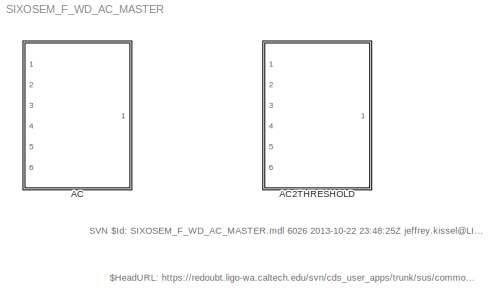
MODEL SIXOSEM_F_WD_AC_MASTER
KIND library
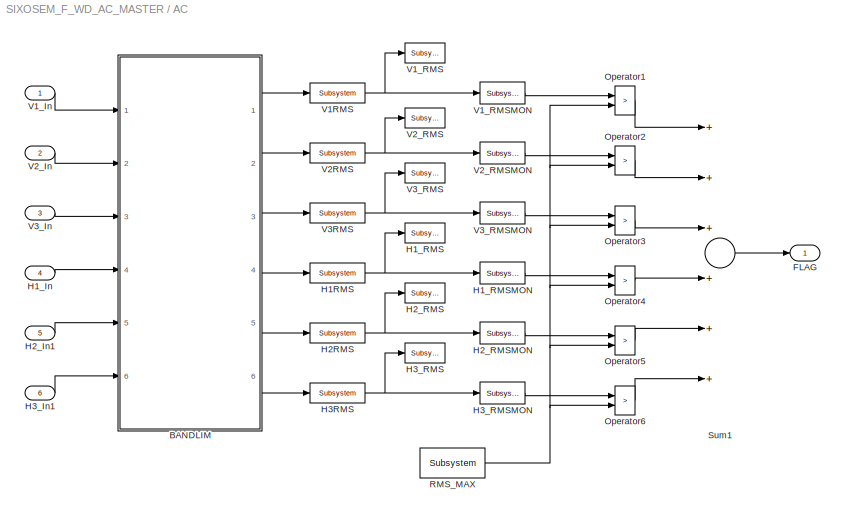
BLOCK [SubSystem] AC
  Ports = [6, 1]
  RequestExecContextInheritance = off
  SID = 1
  Variant = off
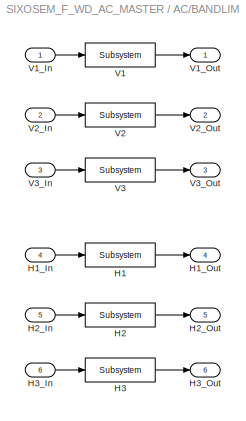
BLOCK [SubSystem] AC/BANDLIM
  Ports = [6, 6]
  RequestExecContextInheritance = off
  SID = 8
  Variant = off
BLOCK [Reference] AC/BANDLIM/H1  REF=cdsFilt/Subsystem
  AttributesFormatString = %<Tag>
  Description = Purpose:                                                                                                                                                                                                                                  \nStandard CDS IIR filter module.                                                                                                                                     ...<+1302ch>  <repeated x12 — deduplicated; at blocks: H1, H2, H3, V1, V2, V3, ACC_H1, ACC_H2, ACC_H3, LVDT_H1, LVDT_H2, LVDT_H3>
  Ports = [1, 1]
  SID = 18
  SourceBlock = cdsFilt/Subsystem
  SourceType = SubSystem
  Tag = cdsFilt
BLOCK [Inport] AC/BANDLIM/H1_In
  IconDisplay = Port number
  Port = 4
  SID = 12
BLOCK [Outport] AC/BANDLIM/H1_Out
  IconDisplay = Port number
  Port = 4
  SID = 24
BLOCK [Reference] AC/BANDLIM/H2  REF=cdsFilt/Subsystem
  AttributesFormatString = %<Tag>
  Ports = [1, 1]
  SID = 19
  SourceBlock = cdsFilt/Subsystem
  SourceType = SubSystem
  Tag = cdsFilt
BLOCK [Inport] AC/BANDLIM/H2_In
  IconDisplay = Port number
  Port = 5
  SID = 13
BLOCK [Outport] AC/BANDLIM/H2_Out
  IconDisplay = Port number
  Port = 5
  SID = 25
BLOCK [Reference] AC/BANDLIM/H3  REF=cdsFilt/Subsystem
  AttributesFormatString = %<Tag>
  Ports = [1, 1]
  SID = 20
  SourceBlock = cdsFilt/Subsystem
  SourceType = SubSystem
  Tag = cdsFilt
BLOCK [Inport] AC/BANDLIM/H3_In
  IconDisplay = Port number
  Port = 6
  SID = 14
BLOCK [Outport] AC/BANDLIM/H3_Out
  IconDisplay = Port number
  Port = 6
  SID = 26
BLOCK [Reference] AC/BANDLIM/V1  REF=cdsFilt/Subsystem
  AttributesFormatString = %<Tag>
  Ports = [1, 1]
  SID = 15
  SourceBlock = cdsFilt/Subsystem
  SourceType = SubSystem
  Tag = cdsFilt
BLOCK [Inport] AC/BANDLIM/V1_In
  IconDisplay = Port number
  SID = 9
BLOCK [Outport] AC/BANDLIM/V1_Out
  IconDisplay = Port number
  SID = 21
BLOCK [Reference] AC/BANDLIM/V2  REF=cdsFilt/Subsystem
  AttributesFormatString = %<Tag>
  Ports = [1, 1]
  SID = 16
  SourceBlock = cdsFilt/Subsystem
  SourceType = SubSystem
  Tag = cdsFilt
BLOCK [Inport] AC/BANDLIM/V2_In
  IconDisplay = Port number
  Port = 2
  SID = 10
BLOCK [Outport] AC/BANDLIM/V2_Out
  IconDisplay = Port number
  Port = 2
  SID = 22
BLOCK [Reference] AC/BANDLIM/V3  REF=cdsFilt/Subsystem
  AttributesFormatString = %<Tag>
  Ports = [1, 1]
  SID = 17
  SourceBlock = cdsFilt/Subsystem
  SourceType = SubSystem
  Tag = cdsFilt
BLOCK [Inport] AC/BANDLIM/V3_In
  IconDisplay = Port number
  Port = 3
  SID = 11
BLOCK [Outport] AC/BANDLIM/V3_Out
  IconDisplay = Port number
  Port = 3
  SID = 23
BLOCK [Outport] AC/FLAG
  IconDisplay = Port number
  SID = 53
BLOCK [Reference] AC/H1RMS  REF=cdsRms/Subsystem
  AttributesFormatString = %<Tag>
  Description = Purpose:                                   \nCalculate an RMS based on the input signal.
  Ports = [1, 1]
  SID = 36
  SourceBlock = cdsRms/Subsystem
  SourceType = SubSystem
  Tag = cdsRms
BLOCK [Inport] AC/H1_In
  IconDisplay = Port number
  Port = 4
  SID = 5
BLOCK [Reference] AC/H1_RMS  REF=cdsTP/Subsystem
  AttributesFormatString = %<Tag>
  Ports = [1]
  SID = 37
  SourceBlock = cdsTP/Subsystem
  SourceType = SubSystem
  Tag = Test Point
BLOCK [Reference] AC/H1_RMSMON  REF=cdsEpicsOut/Subsystem
  AttributesFormatString = %<Tag>
  Description = Purpose:                                          \nOutput a FE signal to an EPICS channel.           \n                                                  \nOperation:                                        \nTakes input value and passes it to EPICS record.  \n                                                  \nUsage:                                            \nName the part with the desired EPICS...<+14ch>  <repeated x12 — deduplicated; at blocks: H1_RMSMON, H2_RMSMON, H3_RMSMON, V1_RMSMON, V2_RMSMON, V3_RMSMON, ACC_H1_RMSMON, ACC_H2_RMSMON, ACC_H3_RMSMON, LVDT_H1_RMSMON, LVDT_H2_RMSMON, LVDT_H3_RMSMON>
  Ports = [1, 1]
  SID = 38
  SourceBlock = cdsEpicsOut/Subsystem
  SourceType = SubSystem
  Tag = cdsEpicsOutput
BLOCK [Reference] AC/H2RMS  REF=cdsRms/Subsystem
  AttributesFormatString = %<Tag>
  Description = Purpose:                                   \nCalculate an RMS based on the input signal.
  Ports = [1, 1]
  SID = 46
  SourceBlock = cdsRms/Subsystem
  SourceType = SubSystem
  Tag = cdsRms
BLOCK [Inport] AC/H2_In1
  IconDisplay = Port number
  Port = 5
  SID = 6
BLOCK [Reference] AC/H2_RMS  REF=cdsTP/Subsystem
  AttributesFormatString = %<Tag>
  Ports = [1]
  SID = 47
  SourceBlock = cdsTP/Subsystem
  SourceType = SubSystem
  Tag = Test Point
BLOCK [Reference] AC/H2_RMSMON  REF=cdsEpicsOut/Subsystem
  AttributesFormatString = %<Tag>
  Ports = [1, 1]
  SID = 48
  SourceBlock = cdsEpicsOut/Subsystem
  SourceType = SubSystem
  Tag = cdsEpicsOutput
BLOCK [Reference] AC/H3RMS  REF=cdsRms/Subsystem
  AttributesFormatString = %<Tag>
  Description = Purpose:                                   \nCalculate an RMS based on the input signal.
  Ports = [1, 1]
  SID = 49
  SourceBlock = cdsRms/Subsystem
  SourceType = SubSystem
  Tag = cdsRms
BLOCK [Inport] AC/H3_In1
  IconDisplay = Port number
  Port = 6
  SID = 7
BLOCK [Reference] AC/H3_RMS  REF=cdsTP/Subsystem
  AttributesFormatString = %<Tag>
  Ports = [1]
  SID = 50
  SourceBlock = cdsTP/Subsystem
  SourceType = SubSystem
  Tag = Test Point
BLOCK [Reference] AC/H3_RMSMON  REF=cdsEpicsOut/Subsystem
  AttributesFormatString = %<Tag>
  Ports = [1, 1]
  SID = 51
  SourceBlock = cdsEpicsOut/Subsystem
  SourceType = SubSystem
  Tag = cdsEpicsOutput
BLOCK [RelationalOperator] AC/Operator1
  InputSameDT = off
  Operator = >
  OutDataTypeStr = boolean
  Ports = [2, 1]
  SID = 39
BLOCK [RelationalOperator] AC/Operator2
  InputSameDT = off
  Operator = >
  OutDataTypeStr = boolean
  Ports = [2, 1]
  SID = 40
  ZeroCross = off
BLOCK [RelationalOperator] AC/Operator3
  InputSameDT = off
  Operator = >
  OutDataTypeStr = boolean
  Ports = [2, 1]
  SID = 41
BLOCK [RelationalOperator] AC/Operator4
  InputSameDT = off
  Operator = >
  OutDataTypeStr = boolean
  Ports = [2, 1]
  SID = 42
BLOCK [RelationalOperator] AC/Operator5
  InputSameDT = off
  Operator = >
  OutDataTypeStr = boolean
  Ports = [2, 1]
  SID = 43
BLOCK [RelationalOperator] AC/Operator6
  InputSameDT = off
  Operator = >
  OutDataTypeStr = boolean
  Ports = [2, 1]
  SID = 44
BLOCK [Reference] AC/RMS_MAX  REF=cdsEpicsIn/Subsystem
  AttributesFormatString = %<Tag>
  Description = Purpose:                                                                              \nCreate an EPICS input channel connection to the FE realtime controls.                 \n                                                                                      \nOperation:                                                                            \nOutputs value from an EPICS ai record. Value is ...<+266ch>  <repeated x3 — deduplicated; at blocks: RMS_MAX, RMS_MAX_ACC, RMS_MAX_LVDT>
  Ports = [0, 1]
  SID = 45
  SourceBlock = cdsEpicsIn/Subsystem
  SourceType = SubSystem
  Tag = cdsEpicsIn
BLOCK [Sum] AC/Sum1
  InputSameDT = off
  Inputs = ++++++
  OutDataTypeStr = Inherit: Inherit via internal rule
  Ports = [6, 1]
  SID = 52
  SaturateOnIntegerOverflow = off
BLOCK [Reference] AC/V1RMS  REF=cdsRms/Subsystem
  AttributesFormatString = %<Tag>
  Description = Purpose:                                   \nCalculate an RMS based on the input signal.
  Ports = [1, 1]
  SID = 27
  SourceBlock = cdsRms/Subsystem
  SourceType = SubSystem
  Tag = cdsRms
BLOCK [Inport] AC/V1_In
  IconDisplay = Port number
  SID = 2
BLOCK [Reference] AC/V1_RMS  REF=cdsTP/Subsystem
  AttributesFormatString = %<Tag>
  Ports = [1]
  SID = 28
  SourceBlock = cdsTP/Subsystem
  SourceType = SubSystem
  Tag = Test Point
BLOCK [Reference] AC/V1_RMSMON  REF=cdsEpicsOut/Subsystem
  AttributesFormatString = %<Tag>
  Ports = [1, 1]
  SID = 29
  SourceBlock = cdsEpicsOut/Subsystem
  SourceType = SubSystem
  Tag = cdsEpicsOutput
BLOCK [Reference] AC/V2RMS  REF=cdsRms/Subsystem
  AttributesFormatString = %<Tag>
  Description = Purpose:                                   \nCalculate an RMS based on the input signal.
  Ports = [1, 1]
  SID = 30
  SourceBlock = cdsRms/Subsystem
  SourceType = SubSystem
  Tag = cdsRms
BLOCK [Inport] AC/V2_In
  IconDisplay = Port number
  Port = 2
  SID = 3
BLOCK [Reference] AC/V2_RMS  REF=cdsTP/Subsystem
  AttributesFormatString = %<Tag>
  Ports = [1]
  SID = 31
  SourceBlock = cdsTP/Subsystem
  SourceType = SubSystem
  Tag = Test Point
BLOCK [Reference] AC/V2_RMSMON  REF=cdsEpicsOut/Subsystem
  AttributesFormatString = %<Tag>
  Ports = [1, 1]
  SID = 32
  SourceBlock = cdsEpicsOut/Subsystem
  SourceType = SubSystem
  Tag = cdsEpicsOutput
BLOCK [Reference] AC/V3RMS  REF=cdsRms/Subsystem
  AttributesFormatString = %<Tag>
  Description = Purpose:                                   \nCalculate an RMS based on the input signal.
  Ports = [1, 1]
  SID = 33
  SourceBlock = cdsRms/Subsystem
  SourceType = SubSystem
  Tag = cdsRms
BLOCK [Inport] AC/V3_In
  IconDisplay = Port number
  Port = 3
  SID = 4
BLOCK [Reference] AC/V3_RMS  REF=cdsTP/Subsystem
  AttributesFormatString = %<Tag>
  Ports = [1]
  SID = 34
  SourceBlock = cdsTP/Subsystem
  SourceType = SubSystem
  Tag = Test Point
BLOCK [Reference] AC/V3_RMSMON  REF=cdsEpicsOut/Subsystem
  AttributesFormatString = %<Tag>
  Ports = [1, 1]
  SID = 35
  SourceBlock = cdsEpicsOut/Subsystem
  SourceType = SubSystem
  Tag = cdsEpicsOutput
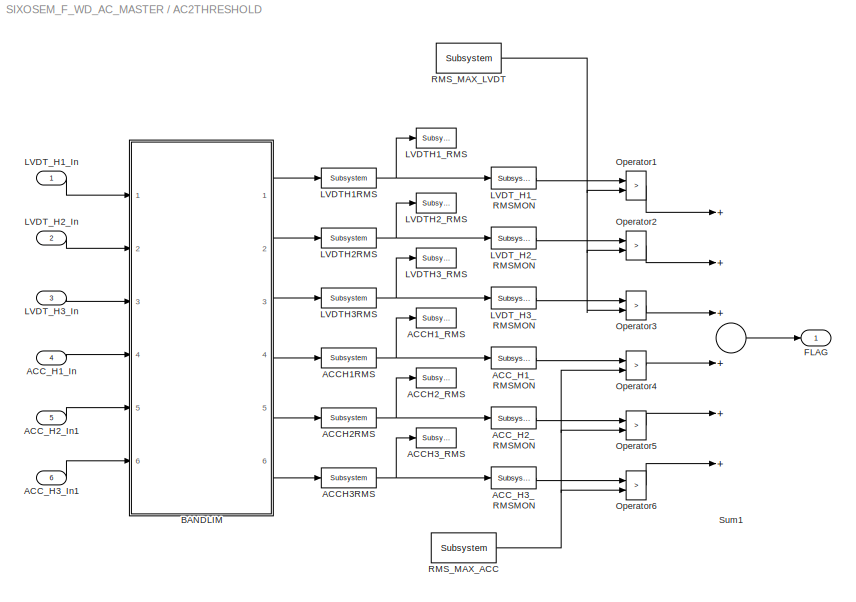
BLOCK [SubSystem] AC2THRESHOLD
  Ports = [6, 1]
  RequestExecContextInheritance = off
  SID = 108
  Variant = off
BLOCK [Reference] AC2THRESHOLD/ACCH1RMS  REF=cdsRms/Subsystem
  AttributesFormatString = %<Tag>
  Description = Purpose:                                   \nCalculate an RMS based on the input signal.
  Ports = [1, 1]
  SID = 115
  SourceBlock = cdsRms/Subsystem
  SourceType = SubSystem
  Tag = cdsRms
BLOCK [Reference] AC2THRESHOLD/ACCH1_RMS  REF=cdsTP/Subsystem
  AttributesFormatString = %<Tag>
  Ports = [1]
  SID = 116
  SourceBlock = cdsTP/Subsystem
  SourceType = SubSystem
  Tag = Test Point
BLOCK [Reference] AC2THRESHOLD/ACCH2RMS  REF=cdsRms/Subsystem
  AttributesFormatString = %<Tag>
  Description = Purpose:                                   \nCalculate an RMS based on the input signal.
  Ports = [1, 1]
  SID = 117
  SourceBlock = cdsRms/Subsystem
  SourceType = SubSystem
  Tag = cdsRms
BLOCK [Reference] AC2THRESHOLD/ACCH2_RMS  REF=cdsTP/Subsystem
  AttributesFormatString = %<Tag>
  Ports = [1]
  SID = 118
  SourceBlock = cdsTP/Subsystem
  SourceType = SubSystem
  Tag = Test Point
BLOCK [Reference] AC2THRESHOLD/ACCH3RMS  REF=cdsRms/Subsystem
  AttributesFormatString = %<Tag>
  Description = Purpose:                                   \nCalculate an RMS based on the input signal.
  Ports = [1, 1]
  SID = 119
  SourceBlock = cdsRms/Subsystem
  SourceType = SubSystem
  Tag = cdsRms
BLOCK [Reference] AC2THRESHOLD/ACCH3_RMS  REF=cdsTP/Subsystem
  AttributesFormatString = %<Tag>
  Ports = [1]
  SID = 120
  SourceBlock = cdsTP/Subsystem
  SourceType = SubSystem
  Tag = Test Point
BLOCK [Inport] AC2THRESHOLD/ACC_H1_In
  IconDisplay = Port number
  Port = 4
  SID = 112
BLOCK [Reference] AC2THRESHOLD/ACC_H1_RMSMON  REF=cdsEpicsOut/Subsystem
  AttributesFormatString = %<Tag>
  Ports = [1, 1]
  SID = 121
  SourceBlock = cdsEpicsOut/Subsystem
  SourceType = SubSystem
  Tag = cdsEpicsOutput
BLOCK [Inport] AC2THRESHOLD/ACC_H2_In1
  IconDisplay = Port number
  Port = 5
  SID = 113
BLOCK [Reference] AC2THRESHOLD/ACC_H2_RMSMON  REF=cdsEpicsOut/Subsystem
  AttributesFormatString = %<Tag>
  Ports = [1, 1]
  SID = 122
  SourceBlock = cdsEpicsOut/Subsystem
  SourceType = SubSystem
  Tag = cdsEpicsOutput
BLOCK [Inport] AC2THRESHOLD/ACC_H3_In1
  IconDisplay = Port number
  Port = 6
  SID = 114
BLOCK [Reference] AC2THRESHOLD/ACC_H3_RMSMON  REF=cdsEpicsOut/Subsystem
  AttributesFormatString = %<Tag>
  Ports = [1, 1]
  SID = 123
  SourceBlock = cdsEpicsOut/Subsystem
  SourceType = SubSystem
  Tag = cdsEpicsOutput
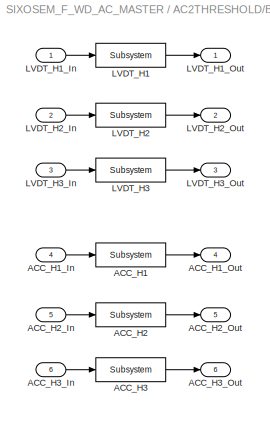
BLOCK [SubSystem] AC2THRESHOLD/BANDLIM
  Ports = [6, 6]
  RequestExecContextInheritance = off
  SID = 124
  Variant = off
BLOCK [Reference] AC2THRESHOLD/BANDLIM/ACC_H1  REF=cdsFilt/Subsystem
  AttributesFormatString = %<Tag>
  Ports = [1, 1]
  SID = 131
  SourceBlock = cdsFilt/Subsystem
  SourceType = SubSystem
  Tag = cdsFilt
BLOCK [Inport] AC2THRESHOLD/BANDLIM/ACC_H1_In
  IconDisplay = Port number
  Port = 4
  SID = 128
BLOCK [Outport] AC2THRESHOLD/BANDLIM/ACC_H1_Out
  IconDisplay = Port number
  Port = 4
  SID = 140
BLOCK [Reference] AC2THRESHOLD/BANDLIM/ACC_H2  REF=cdsFilt/Subsystem
  AttributesFormatString = %<Tag>
  Ports = [1, 1]
  SID = 132
  SourceBlock = cdsFilt/Subsystem
  SourceType = SubSystem
  Tag = cdsFilt
BLOCK [Inport] AC2THRESHOLD/BANDLIM/ACC_H2_In
  IconDisplay = Port number
  Port = 5
  SID = 129
BLOCK [Outport] AC2THRESHOLD/BANDLIM/ACC_H2_Out
  IconDisplay = Port number
  Port = 5
  SID = 141
BLOCK [Reference] AC2THRESHOLD/BANDLIM/ACC_H3  REF=cdsFilt/Subsystem
  AttributesFormatString = %<Tag>
  Ports = [1, 1]
  SID = 133
  SourceBlock = cdsFilt/Subsystem
  SourceType = SubSystem
  Tag = cdsFilt
BLOCK [Inport] AC2THRESHOLD/BANDLIM/ACC_H3_In
  IconDisplay = Port number
  Port = 6
  SID = 130
BLOCK [Outport] AC2THRESHOLD/BANDLIM/ACC_H3_Out
  IconDisplay = Port number
  Port = 6
  SID = 142
BLOCK [Reference] AC2THRESHOLD/BANDLIM/LVDT_H1  REF=cdsFilt/Subsystem
  AttributesFormatString = %<Tag>
  Ports = [1, 1]
  SID = 134
  SourceBlock = cdsFilt/Subsystem
  SourceType = SubSystem
  Tag = cdsFilt
BLOCK [Inport] AC2THRESHOLD/BANDLIM/LVDT_H1_In
  IconDisplay = Port number
  SID = 125
BLOCK [Outport] AC2THRESHOLD/BANDLIM/LVDT_H1_Out
  IconDisplay = Port number
  SID = 137
BLOCK [Reference] AC2THRESHOLD/BANDLIM/LVDT_H2  REF=cdsFilt/Subsystem
  AttributesFormatString = %<Tag>
  Ports = [1, 1]
  SID = 135
  SourceBlock = cdsFilt/Subsystem
  SourceType = SubSystem
  Tag = cdsFilt
BLOCK [Inport] AC2THRESHOLD/BANDLIM/LVDT_H2_In
  IconDisplay = Port number
  Port = 2
  SID = 126
BLOCK [Outport] AC2THRESHOLD/BANDLIM/LVDT_H2_Out
  IconDisplay = Port number
  Port = 2
  SID = 138
BLOCK [Reference] AC2THRESHOLD/BANDLIM/LVDT_H3  REF=cdsFilt/Subsystem
  AttributesFormatString = %<Tag>
  Ports = [1, 1]
  SID = 136
  SourceBlock = cdsFilt/Subsystem
  SourceType = SubSystem
  Tag = cdsFilt
BLOCK [Inport] AC2THRESHOLD/BANDLIM/LVDT_H3_In
  IconDisplay = Port number
  Port = 3
  SID = 127
BLOCK [Outport] AC2THRESHOLD/BANDLIM/LVDT_H3_Out
  IconDisplay = Port number
  Port = 3
  SID = 139
BLOCK [Outport] AC2THRESHOLD/FLAG
  IconDisplay = Port number
  SID = 161
BLOCK [Reference] AC2THRESHOLD/LVDTH1RMS  REF=cdsRms/Subsystem
  AttributesFormatString = %<Tag>
  Description = Purpose:                                   \nCalculate an RMS based on the input signal.
  Ports = [1, 1]
  SID = 143
  SourceBlock = cdsRms/Subsystem
  SourceType = SubSystem
  Tag = cdsRms
BLOCK [Reference] AC2THRESHOLD/LVDTH1_RMS  REF=cdsTP/Subsystem
  AttributesFormatString = %<Tag>
  Ports = [1]
  SID = 144
  SourceBlock = cdsTP/Subsystem
  SourceType = SubSystem
  Tag = Test Point
BLOCK [Reference] AC2THRESHOLD/LVDTH2RMS  REF=cdsRms/Subsystem
  AttributesFormatString = %<Tag>
  Description = Purpose:                                   \nCalculate an RMS based on the input signal.
  Ports = [1, 1]
  SID = 145
  SourceBlock = cdsRms/Subsystem
  SourceType = SubSystem
  Tag = cdsRms
BLOCK [Reference] AC2THRESHOLD/LVDTH2_RMS  REF=cdsTP/Subsystem
  AttributesFormatString = %<Tag>
  Ports = [1]
  SID = 146
  SourceBlock = cdsTP/Subsystem
  SourceType = SubSystem
  Tag = Test Point
BLOCK [Reference] AC2THRESHOLD/LVDTH3RMS  REF=cdsRms/Subsystem
  AttributesFormatString = %<Tag>
  Description = Purpose:                                   \nCalculate an RMS based on the input signal.
  Ports = [1, 1]
  SID = 147
  SourceBlock = cdsRms/Subsystem
  SourceType = SubSystem
  Tag = cdsRms
BLOCK [Reference] AC2THRESHOLD/LVDTH3_RMS  REF=cdsTP/Subsystem
  AttributesFormatString = %<Tag>
  Ports = [1]
  SID = 148
  SourceBlock = cdsTP/Subsystem
  SourceType = SubSystem
  Tag = Test Point
BLOCK [Inport] AC2THRESHOLD/LVDT_H1_In
  IconDisplay = Port number
  SID = 109
BLOCK [Reference] AC2THRESHOLD/LVDT_H1_RMSMON  REF=cdsEpicsOut/Subsystem
  AttributesFormatString = %<Tag>
  Ports = [1, 1]
  SID = 149
  SourceBlock = cdsEpicsOut/Subsystem
  SourceType = SubSystem
  Tag = cdsEpicsOutput
BLOCK [Inport] AC2THRESHOLD/LVDT_H2_In
  IconDisplay = Port number
  Port = 2
  SID = 110
BLOCK [Reference] AC2THRESHOLD/LVDT_H2_RMSMON  REF=cdsEpicsOut/Subsystem
  AttributesFormatString = %<Tag>
  Ports = [1, 1]
  SID = 150
  SourceBlock = cdsEpicsOut/Subsystem
  SourceType = SubSystem
  Tag = cdsEpicsOutput
BLOCK [Inport] AC2THRESHOLD/LVDT_H3_In
  IconDisplay = Port number
  Port = 3
  SID = 111
BLOCK [Reference] AC2THRESHOLD/LVDT_H3_RMSMON  REF=cdsEpicsOut/Subsystem
  AttributesFormatString = %<Tag>
  Ports = [1, 1]
  SID = 151
  SourceBlock = cdsEpicsOut/Subsystem
  SourceType = SubSystem
  Tag = cdsEpicsOutput
BLOCK [RelationalOperator] AC2THRESHOLD/Operator1
  InputSameDT = off
  Operator = >
  OutDataTypeStr = boolean
  Ports = [2, 1]
  SID = 152
BLOCK [RelationalOperator] AC2THRESHOLD/Operator2
  InputSameDT = off
  Operator = >
  OutDataTypeStr = boolean
  Ports = [2, 1]
  SID = 153
  ZeroCross = off
BLOCK [RelationalOperator] AC2THRESHOLD/Operator3
  InputSameDT = off
  Operator = >
  OutDataTypeStr = boolean
  Ports = [2, 1]
  SID = 154
BLOCK [RelationalOperator] AC2THRESHOLD/Operator4
  InputSameDT = off
  Operator = >
  OutDataTypeStr = boolean
  Ports = [2, 1]
  SID = 155
BLOCK [RelationalOperator] AC2THRESHOLD/Operator5
  InputSameDT = off
  Operator = >
  OutDataTypeStr = boolean
  Ports = [2, 1]
  SID = 156
BLOCK [RelationalOperator] AC2THRESHOLD/Operator6
  InputSameDT = off
  Operator = >
  OutDataTypeStr = boolean
  Ports = [2, 1]
  SID = 157
BLOCK [Reference] AC2THRESHOLD/RMS_MAX_ACC  REF=cdsEpicsIn/Subsystem
  AttributesFormatString = %<Tag>
  Ports = [0, 1]
  SID = 158
  SourceBlock = cdsEpicsIn/Subsystem
  SourceType = SubSystem
  Tag = cdsEpicsIn
BLOCK [Reference] AC2THRESHOLD/RMS_MAX_LVDT  REF=cdsEpicsIn/Subsystem
  AttributesFormatString = %<Tag>
  Ports = [0, 1]
  SID = 159
  SourceBlock = cdsEpicsIn/Subsystem
  SourceType = SubSystem
  Tag = cdsEpicsIn
BLOCK [Sum] AC2THRESHOLD/Sum1
  InputSameDT = off
  Inputs = ++++++
  OutDataTypeStr = Inherit: Inherit via internal rule
  Ports = [6, 1]
  SID = 160
  SaturateOnIntegerOverflow = off
ANNOTATION (root): $HeadURL: https://redoubt.ligo-wa.caltech.edu/svn/cds_user_apps/trunk/sus/common/models/SIXOSEM_F_WD_AC_MASTER.mdl $
ANNOTATION (root): SVN $Id: SIXOSEM_F_WD_AC_MASTER.mdl 6026 2013-10-22 23:48:25Z <email> $
LINE AC/BANDLIM/H1:1 -> AC/BANDLIM/H1_Out:1
LINE AC/BANDLIM/H1_In:1 -> AC/BANDLIM/H1:1
LINE AC/BANDLIM/H2:1 -> AC/BANDLIM/H2_Out:1
LINE AC/BANDLIM/H2_In:1 -> AC/BANDLIM/H2:1
LINE AC/BANDLIM/H3:1 -> AC/BANDLIM/H3_Out:1
LINE AC/BANDLIM/H3_In:1 -> AC/BANDLIM/H3:1
LINE AC/BANDLIM/V1:1 -> AC/BANDLIM/V1_Out:1
LINE AC/BANDLIM/V1_In:1 -> AC/BANDLIM/V1:1
LINE AC/BANDLIM/V2:1 -> AC/BANDLIM/V2_Out:1
LINE AC/BANDLIM/V2_In:1 -> AC/BANDLIM/V2:1
LINE AC/BANDLIM/V3:1 -> AC/BANDLIM/V3_Out:1
LINE AC/BANDLIM/V3_In:1 -> AC/BANDLIM/V3:1
LINE AC/BANDLIM:1 -> AC/V1RMS:1
LINE AC/BANDLIM:2 -> AC/V2RMS:1
LINE AC/BANDLIM:3 -> AC/V3RMS:1
LINE AC/BANDLIM:4 -> AC/H1RMS:1
LINE AC/BANDLIM:5 -> AC/H2RMS:1
LINE AC/BANDLIM:6 -> AC/H3RMS:1
NET AC/H1RMS:1 -> AC/H1_RMS:1, AC/H1_RMSMON:1
LINE AC/H1_In:1 -> AC/BANDLIM:4
LINE AC/H1_RMSMON:1 -> AC/Operator4:1
NET AC/H2RMS:1 -> AC/H2_RMS:1, AC/H2_RMSMON:1
LINE AC/H2_In1:1 -> AC/BANDLIM:5
LINE AC/H2_RMSMON:1 -> AC/Operator5:1
NET AC/H3RMS:1 -> AC/H3_RMS:1, AC/H3_RMSMON:1
LINE AC/H3_In1:1 -> AC/BANDLIM:6
LINE AC/H3_RMSMON:1 -> AC/Operator6:1
LINE AC/Operator1:1 -> AC/Sum1:1
LINE AC/Operator2:1 -> AC/Sum1:2
LINE AC/Operator3:1 -> AC/Sum1:3
LINE AC/Operator4:1 -> AC/Sum1:4
LINE AC/Operator5:1 -> AC/Sum1:5
LINE AC/Operator6:1 -> AC/Sum1:6
NET AC/RMS_MAX:1 -> AC/Operator1:2, AC/Operator2:2, AC/Operator3:2, AC/Operator4:2, AC/Operator5:2, AC/Operator6:2
LINE AC/Sum1:1 -> AC/FLAG:1
NET AC/V1RMS:1 -> AC/V1_RMS:1, AC/V1_RMSMON:1
LINE AC/V1_In:1 -> AC/BANDLIM:1
LINE AC/V1_RMSMON:1 -> AC/Operator1:1
NET AC/V2RMS:1 -> AC/V2_RMS:1, AC/V2_RMSMON:1
LINE AC/V2_In:1 -> AC/BANDLIM:2
LINE AC/V2_RMSMON:1 -> AC/Operator2:1
NET AC/V3RMS:1 -> AC/V3_RMS:1, AC/V3_RMSMON:1
LINE AC/V3_In:1 -> AC/BANDLIM:3
LINE AC/V3_RMSMON:1 -> AC/Operator3:1
NET AC2THRESHOLD/ACCH1RMS:1 -> AC2THRESHOLD/ACCH1_RMS:1, AC2THRESHOLD/ACC_H1_RMSMON:1
NET AC2THRESHOLD/ACCH2RMS:1 -> AC2THRESHOLD/ACCH2_RMS:1, AC2THRESHOLD/ACC_H2_RMSMON:1
NET AC2THRESHOLD/ACCH3RMS:1 -> AC2THRESHOLD/ACCH3_RMS:1, AC2THRESHOLD/ACC_H3_RMSMON:1
LINE AC2THRESHOLD/ACC_H1_In:1 -> AC2THRESHOLD/BANDLIM:4
LINE AC2THRESHOLD/ACC_H1_RMSMON:1 -> AC2THRESHOLD/Operator4:1
LINE AC2THRESHOLD/ACC_H2_In1:1 -> AC2THRESHOLD/BANDLIM:5
LINE AC2THRESHOLD/ACC_H2_RMSMON:1 -> AC2THRESHOLD/Operator5:1
LINE AC2THRESHOLD/ACC_H3_In1:1 -> AC2THRESHOLD/BANDLIM:6
LINE AC2THRESHOLD/ACC_H3_RMSMON:1 -> AC2THRESHOLD/Operator6:1
LINE AC2THRESHOLD/BANDLIM/ACC_H1:1 -> AC2THRESHOLD/BANDLIM/ACC_H1_Out:1
LINE AC2THRESHOLD/BANDLIM/ACC_H1_In:1 -> AC2THRESHOLD/BANDLIM/ACC_H1:1
LINE AC2THRESHOLD/BANDLIM/ACC_H2:1 -> AC2THRESHOLD/BANDLIM/ACC_H2_Out:1
LINE AC2THRESHOLD/BANDLIM/ACC_H2_In:1 -> AC2THRESHOLD/BANDLIM/ACC_H2:1
LINE AC2THRESHOLD/BANDLIM/ACC_H3:1 -> AC2THRESHOLD/BANDLIM/ACC_H3_Out:1
LINE AC2THRESHOLD/BANDLIM/ACC_H3_In:1 -> AC2THRESHOLD/BANDLIM/ACC_H3:1
LINE AC2THRESHOLD/BANDLIM/LVDT_H1:1 -> AC2THRESHOLD/BANDLIM/LVDT_H1_Out:1
LINE AC2THRESHOLD/BANDLIM/LVDT_H1_In:1 -> AC2THRESHOLD/BANDLIM/LVDT_H1:1
LINE AC2THRESHOLD/BANDLIM/LVDT_H2:1 -> AC2THRESHOLD/BANDLIM/LVDT_H2_Out:1
LINE AC2THRESHOLD/BANDLIM/LVDT_H2_In:1 -> AC2THRESHOLD/BANDLIM/LVDT_H2:1
LINE AC2THRESHOLD/BANDLIM/LVDT_H3:1 -> AC2THRESHOLD/BANDLIM/LVDT_H3_Out:1
LINE AC2THRESHOLD/BANDLIM/LVDT_H3_In:1 -> AC2THRESHOLD/BANDLIM/LVDT_H3:1
LINE AC2THRESHOLD/BANDLIM:1 -> AC2THRESHOLD/LVDTH1RMS:1
LINE AC2THRESHOLD/BANDLIM:2 -> AC2THRESHOLD/LVDTH2RMS:1
LINE AC2THRESHOLD/BANDLIM:3 -> AC2THRESHOLD/LVDTH3RMS:1
LINE AC2THRESHOLD/BANDLIM:4 -> AC2THRESHOLD/ACCH1RMS:1
LINE AC2THRESHOLD/BANDLIM:5 -> AC2THRESHOLD/ACCH2RMS:1
LINE AC2THRESHOLD/BANDLIM:6 -> AC2THRESHOLD/ACCH3RMS:1
NET AC2THRESHOLD/LVDTH1RMS:1 -> AC2THRESHOLD/LVDTH1_RMS:1, AC2THRESHOLD/LVDT_H1_RMSMON:1
NET AC2THRESHOLD/LVDTH2RMS:1 -> AC2THRESHOLD/LVDTH2_RMS:1, AC2THRESHOLD/LVDT_H2_RMSMON:1
NET AC2THRESHOLD/LVDTH3RMS:1 -> AC2THRESHOLD/LVDTH3_RMS:1, AC2THRESHOLD/LVDT_H3_RMSMON:1
LINE AC2THRESHOLD/LVDT_H1_In:1 -> AC2THRESHOLD/BANDLIM:1
LINE AC2THRESHOLD/LVDT_H1_RMSMON:1 -> AC2THRESHOLD/Operator1:1
LINE AC2THRESHOLD/LVDT_H2_In:1 -> AC2THRESHOLD/BANDLIM:2
LINE AC2THRESHOLD/LVDT_H2_RMSMON:1 -> AC2THRESHOLD/Operator2:1
LINE AC2THRESHOLD/LVDT_H3_In:1 -> AC2THRESHOLD/BANDLIM:3
LINE AC2THRESHOLD/LVDT_H3_RMSMON:1 -> AC2THRESHOLD/Operator3:1
LINE AC2THRESHOLD/Operator1:1 -> AC2THRESHOLD/Sum1:1
LINE AC2THRESHOLD/Operator2:1 -> AC2THRESHOLD/Sum1:2
LINE AC2THRESHOLD/Operator3:1 -> AC2THRESHOLD/Sum1:3
LINE AC2THRESHOLD/Operator4:1 -> AC2THRESHOLD/Sum1:4
LINE AC2THRESHOLD/Operator5:1 -> AC2THRESHOLD/Sum1:5
LINE AC2THRESHOLD/Operator6:1 -> AC2THRESHOLD/Sum1:6
NET AC2THRESHOLD/RMS_MAX_ACC:1 -> AC2THRESHOLD/Operator4:2, AC2THRESHOLD/Operator5:2, AC2THRESHOLD/Operator6:2
NET AC2THRESHOLD/RMS_MAX_LVDT:1 -> AC2THRESHOLD/Operator1:2, AC2THRESHOLD/Operator2:2, AC2THRESHOLD/Operator3:2
LINE AC2THRESHOLD/Sum1:1 -> AC2THRESHOLD/FLAG:1
note: NET lines group one-source signal fan-out (src -> all destinations, sorted); 1:1 wires keep LINE
